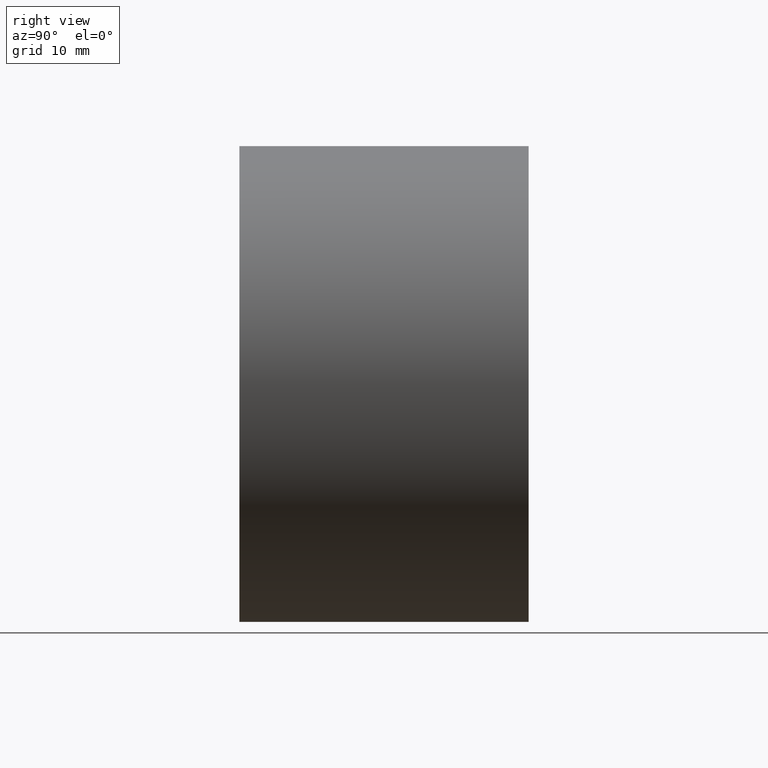
[diagram: clean part render]
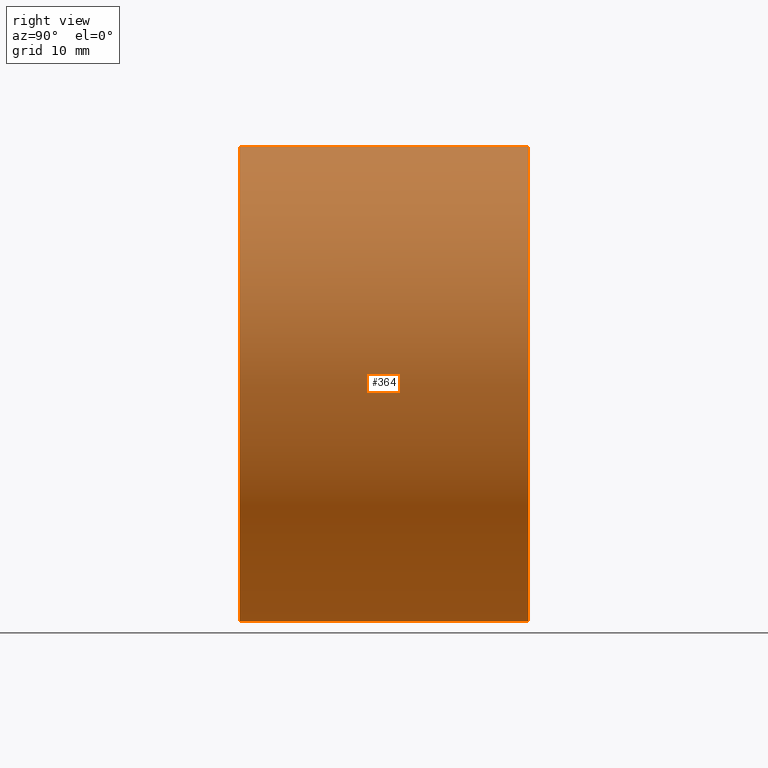
[diagram: same view with one face highlighted and labeled with its STEP entity id]
A machine part, right view. The second image highlights one B-rep face of the part: STEP entity #364.
In plain terms, the highlighted cylindrical surface (partial cylindrical patch) has radius 25.4 mm, axis along (-0, 1, -0).
Its self-contained STEP definition (entity closure, byte-faithful):
#27 = CARTESIAN_POINT ( 'NONE',  ( 0.0000000000000000000, -2.775557561562891400E-014, 0.0000000000000000000 ) ) ;
#28 = DIRECTION ( 'NONE',  ( -0.0000000000000000000, 1.000000000000000000, -0.0000000000000000000 ) ) ;
#77 = DIRECTION ( 'NONE',  ( 0.0000000000000000000, 0.0000000000000000000, 1.000000000000000000 ) ) ;
#107 = EDGE_CURVE ( 'NONE', #311, #468, #161, .T. ) ;
#138 = CARTESIAN_POINT ( 'NONE',  ( 0.0000000000000000000, 30.89999999999998400, 25.40000000000002000 ) ) ;
#146 = DIRECTION ( 'NONE',  ( 0.0000000000000000000, 0.0000000000000000000, 1.000000000000000000 ) ) ;
#161 = CIRCLE ( 'NONE', #562, 25.40000000000002000 ) ;
#178 = CYLINDRICAL_SURFACE ( 'NONE', #471, 25.40000000000001600 ) ;
#253 = DIRECTION ( 'NONE',  ( -0.0000000000000000000, 1.000000000000000000, -0.0000000000000000000 ) ) ;
#301 = VERTEX_POINT ( 'NONE', #498 ) ;
#311 = VERTEX_POINT ( 'NONE', #138 ) ;
#320 = ORIENTED_EDGE ( 'NONE', *, *, #568, .T. ) ;
#335 = CARTESIAN_POINT ( 'NONE',  ( 0.0000000000000000000, 161.3761669434274500, 25.40000000000001600 ) ) ;
#352 = CIRCLE ( 'NONE', #386, 25.40000000000001300 ) ;
#364 = ADVANCED_FACE ( 'NONE', ( #366 ), #178, .T. ) ;
#366 = FACE_OUTER_BOUND ( 'NONE', #438, .T. ) ;
#372 = EDGE_CURVE ( 'NONE', #522, #311, #382, .T. ) ;
#382 = LINE ( 'NONE', #335, #454 ) ;
#386 = AXIS2_PLACEMENT_3D ( 'NONE', #27, #28, #77 ) ;
#393 = CARTESIAN_POINT ( 'NONE',  ( 0.0000000000000000000, 161.3761669434274500, 0.0000000000000000000 ) ) ;
#432 = DIRECTION ( 'NONE',  ( 0.0000000000000000000, 0.0000000000000000000, 1.000000000000000000 ) ) ;
#436 = DIRECTION ( 'NONE',  ( -0.0000000000000000000, 1.000000000000000000, -0.0000000000000000000 ) ) ;
#438 = EDGE_LOOP ( 'NONE', ( #320, #458, #449, #604 ) ) ;
#441 = DIRECTION ( 'NONE',  ( -0.0000000000000000000, 1.000000000000000000, -0.0000000000000000000 ) ) ;
#449 = ORIENTED_EDGE ( 'NONE', *, *, #107, .F. ) ;
#454 = VECTOR ( 'NONE', #436, 1000.000000000000000 ) ;
#456 = VECTOR ( 'NONE', #441, 1000.000000000000000 ) ;
#458 = ORIENTED_EDGE ( 'NONE', *, *, #513, .T. ) ;
#468 = VERTEX_POINT ( 'NONE', #495 ) ;
#471 = AXIS2_PLACEMENT_3D ( 'NONE', #393, #473, #146 ) ;
#473 = DIRECTION ( 'NONE',  ( -0.0000000000000000000, 1.000000000000000000, -0.0000000000000000000 ) ) ;
#495 = CARTESIAN_POINT ( 'NONE',  ( 3.110602869834279600E-015, 30.89999999999998400, -25.40000000000002300 ) ) ;
#498 = CARTESIAN_POINT ( 'NONE',  ( 3.110602869834278800E-015, -2.775557561562891400E-014, -25.40000000000001300 ) ) ;
#513 = EDGE_CURVE ( 'NONE', #301, #468, #559, .T. ) ;
#522 = VERTEX_POINT ( 'NONE', #552 ) ;
#536 = CARTESIAN_POINT ( 'NONE',  ( 3.110602869834278800E-015, 161.3761669434274500, -25.40000000000001600 ) ) ;
#552 = CARTESIAN_POINT ( 'NONE',  ( 0.0000000000000000000, -2.775557561562891400E-014, 25.40000000000001300 ) ) ;
#559 = LINE ( 'NONE', #536, #456 ) ;
#562 = AXIS2_PLACEMENT_3D ( 'NONE', #569, #253, #432 ) ;
#568 = EDGE_CURVE ( 'NONE', #522, #301, #352, .T. ) ;
#569 = CARTESIAN_POINT ( 'NONE',  ( 0.0000000000000000000, 30.89999999999998400, 0.0000000000000000000 ) ) ;
#604 = ORIENTED_EDGE ( 'NONE', *, *, #372, .F. ) ;